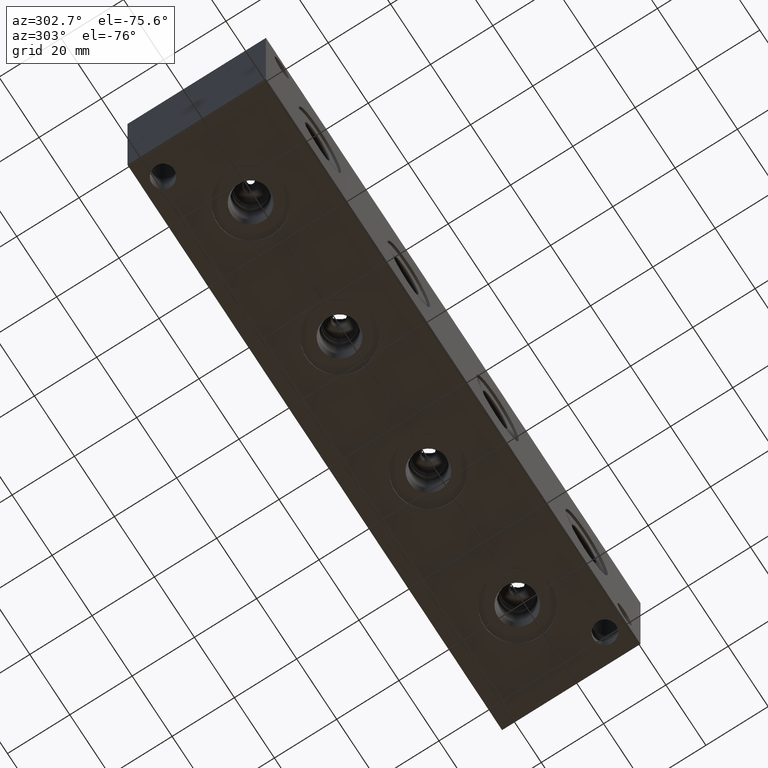
[diagram: clean part render]
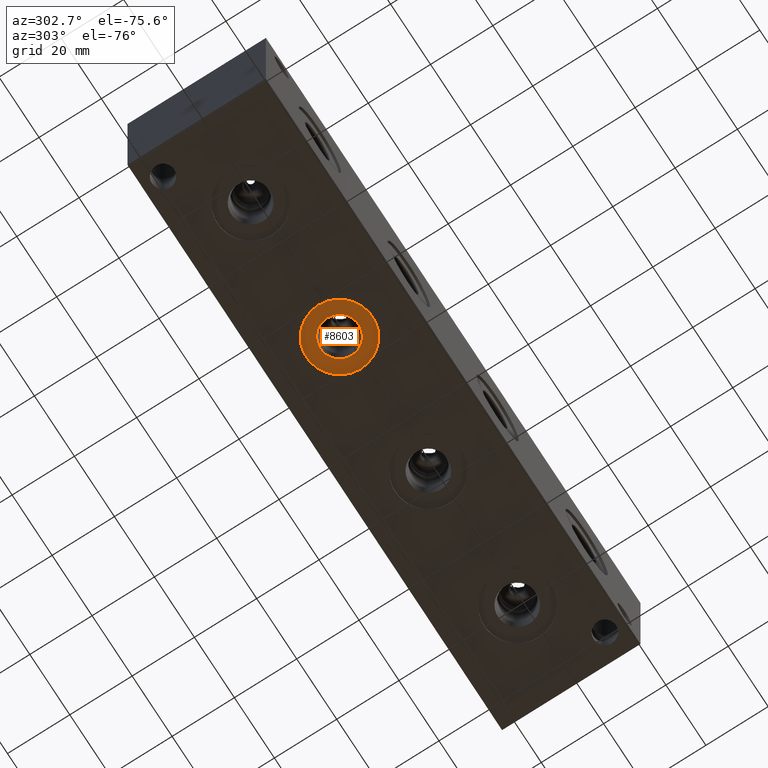
[diagram: same view with one face highlighted and labeled with its STEP entity id]
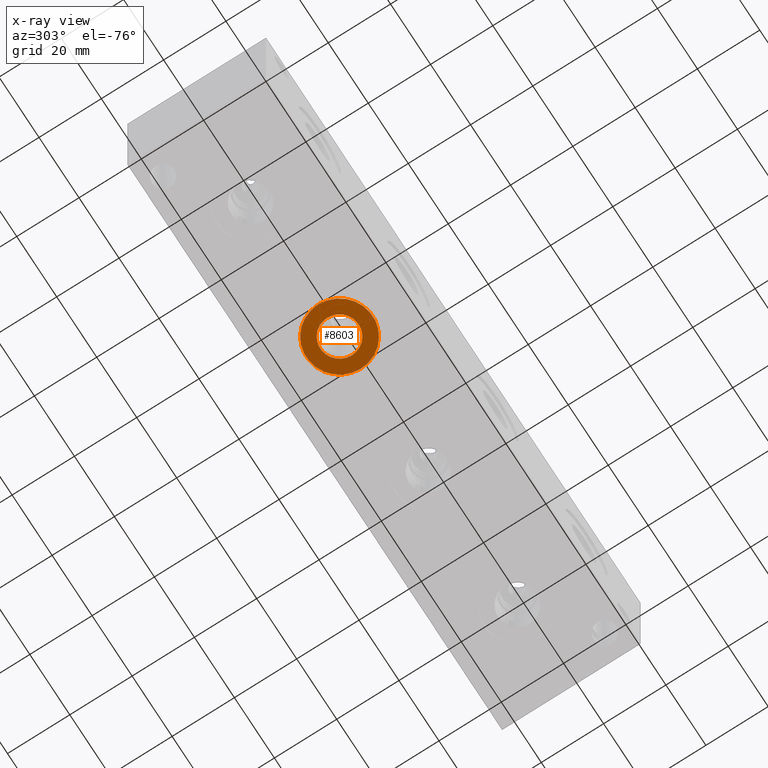
[diagram: x-ray of the same camera — body ghosted, the highlighted face saturated]
A machine part, auxiliary view. The second image highlights one B-rep face of the part: STEP entity #8603.
The next image is the same camera in x-ray: the body ghosted, the highlighted face saturated — about 0% of this face is hidden behind the body in this view.
In plain terms, the highlighted planar face has unit normal (0, 0, -1).
Its self-contained STEP definition (entity closure, byte-faithful):
#339=CIRCLE('',#9193,10.6426);
#340=CIRCLE('',#9194,10.6426);
#341=CIRCLE('',#9195,6.1976);
#443=FACE_BOUND('',#1594,.T.);
#1100=FACE_OUTER_BOUND('',#1593,.T.);
#1593=EDGE_LOOP('',(#7401,#7402));
#1594=EDGE_LOOP('',(#7403));
#3975=VERTEX_POINT('',#14628);
#3976=VERTEX_POINT('',#14629);
#3977=VERTEX_POINT('',#14632);
#5147=EDGE_CURVE('',#3975,#3976,#339,.T.);
#5148=EDGE_CURVE('',#3976,#3975,#340,.T.);
#5149=EDGE_CURVE('',#3977,#3977,#341,.T.);
#7401=ORIENTED_EDGE('',*,*,#5147,.T.);
#7402=ORIENTED_EDGE('',*,*,#5148,.T.);
#7403=ORIENTED_EDGE('',*,*,#5149,.F.);
#7903=PLANE('',#9192);
#8603=ADVANCED_FACE('',(#1100,#443),#7903,.T.);
#9192=AXIS2_PLACEMENT_3D('',#14627,#11094,#11095);
#9193=AXIS2_PLACEMENT_3D('',#14630,#11096,#11097);
#9194=AXIS2_PLACEMENT_3D('',#14631,#11098,#11099);
#9195=AXIS2_PLACEMENT_3D('',#14633,#11100,#11101);
#11094=DIRECTION('center_axis',(0.,0.,-1.));
#11095=DIRECTION('ref_axis',(1.,0.,0.));
#11096=DIRECTION('center_axis',(0.,0.,-1.));
#11097=DIRECTION('ref_axis',(1.,0.,0.));
#11098=DIRECTION('center_axis',(0.,0.,-1.));
#11099=DIRECTION('ref_axis',(1.,0.,0.));
#11100=DIRECTION('center_axis',(0.,0.,-1.));
#11101=DIRECTION('ref_axis',(1.,0.,0.));
#14627=CARTESIAN_POINT('Origin',(71.4248,22.225,0.7874));
#14628=CARTESIAN_POINT('',(82.0674,22.225,0.7874));
#14629=CARTESIAN_POINT('',(60.7822,22.225,0.7874));
#14630=CARTESIAN_POINT('Origin',(71.4248,22.225,0.7874));
#14631=CARTESIAN_POINT('Origin',(71.4248,22.225,0.7874));
#14632=CARTESIAN_POINT('',(65.2272,22.225,0.7874));
#14633=CARTESIAN_POINT('Origin',(71.4248,22.225,0.7874));